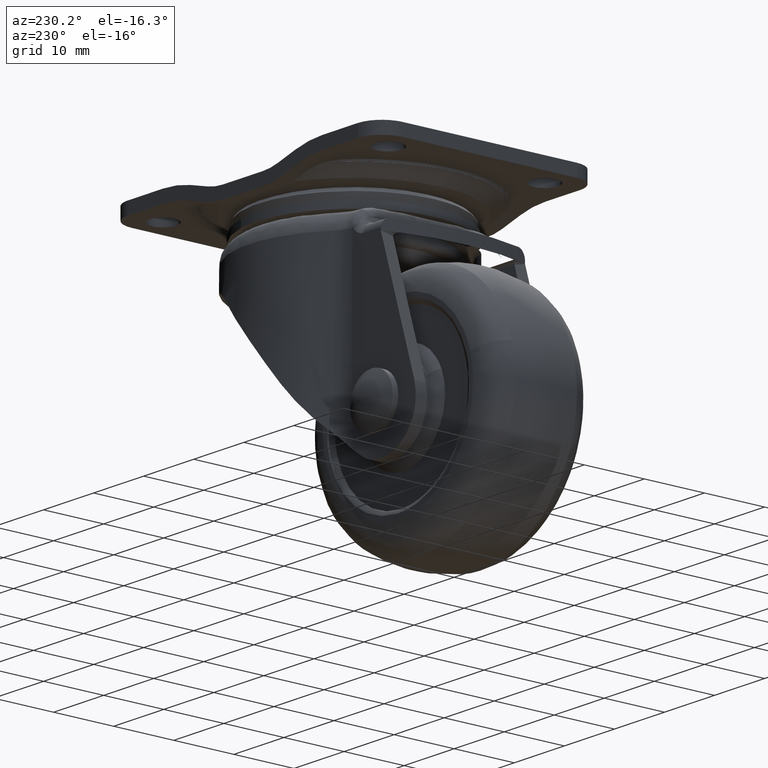
[diagram: clean part render]
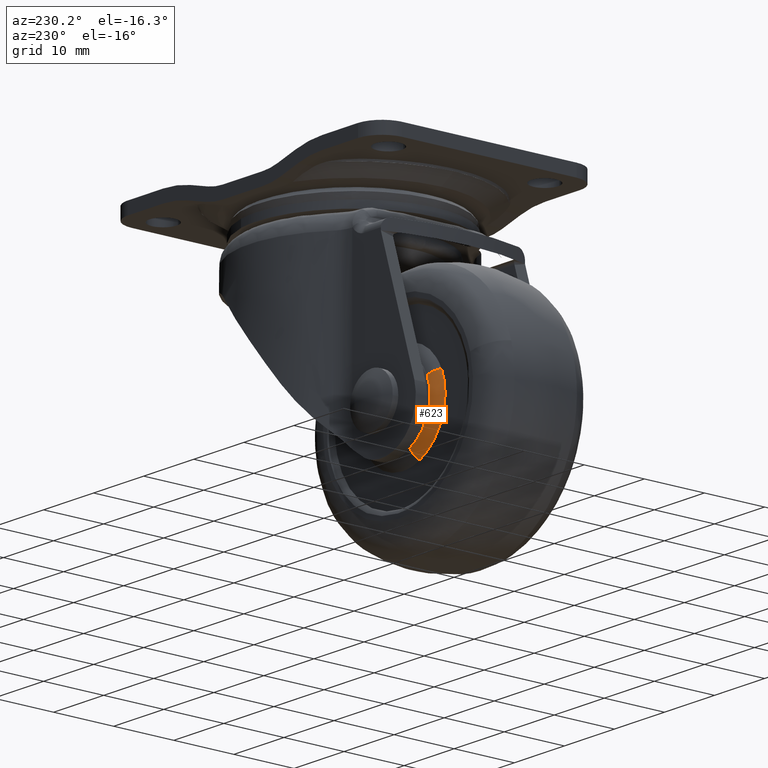
[diagram: same view with one face highlighted and labeled with its STEP entity id]
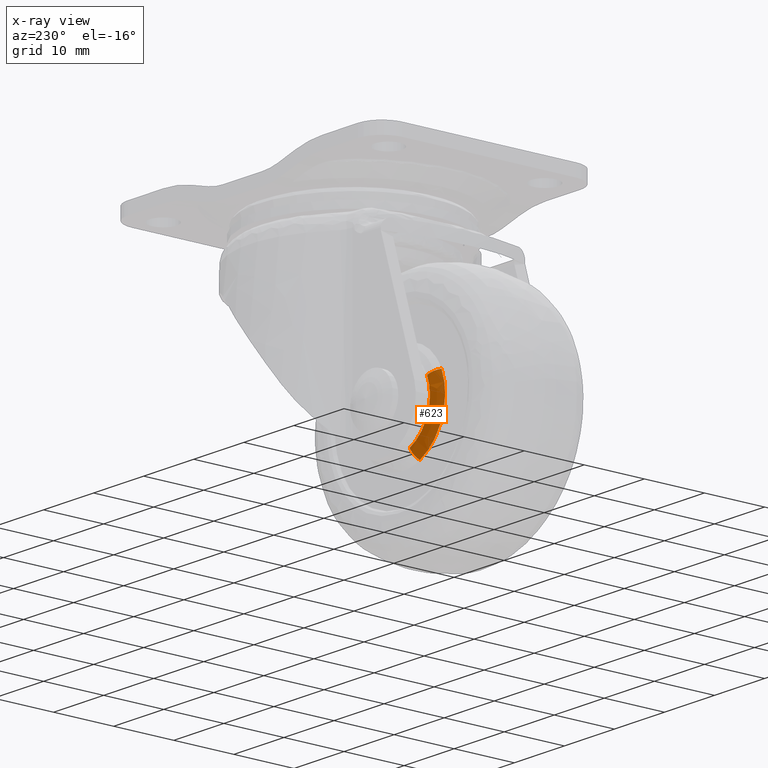
[diagram: x-ray of the same camera — body ghosted, the highlighted face saturated]
A machine part, auxiliary view. The second image highlights one B-rep face of the part: STEP entity #623.
The next image is the same camera in x-ray: the body ghosted, the highlighted face saturated — about 0% of this face is hidden behind the body in this view.
In plain terms, the highlighted face is a freeform B-spline surface patch.
Its self-contained STEP definition (entity closure, byte-faithful):
#410=CARTESIAN_POINT('',(-21.744345537140489,8.864834960376431,-41.234232919773874));
#411=VERTEX_POINT('',#410);
#425=CARTESIAN_POINT('',(-25.234047919773769,8.864834960376431,-32.255839462859612));
#426=VERTEX_POINT('',#425);
#427=CARTESIAN_POINT('',(-25.234047919773772,8.864834960376431,-32.255839462859612));
#428=CARTESIAN_POINT('',(-25.811371800489386,8.864834923923942,-33.567286849199249));
#429=CARTESIAN_POINT('',(-25.811371800489390,8.864834923923940,-35.000185000000101));
#430=CARTESIAN_POINT('',(-25.811371800489393,8.864834923923942,-39.443851202539982));
#431=CARTESIAN_POINT('',(-21.744345537140482,8.864834960376431,-41.234232919773881));
#439=(BOUNDED_CURVE()B_SPLINE_CURVE(2,(#427,#428,#429,#430,#431),.UNSPECIFIED.,.F.,.U.)B_SPLINE_CURVE_WITH_KNOTS((3,2,3),(0.681585009858461,0.750000000000000,0.931585009858460),.UNSPECIFIED.)CURVE()GEOMETRIC_REPRESENTATION_ITEM()RATIONAL_B_SPLINE_CURVE((0.883563120514976,0.919846853289416,1.0,0.787259927897132,0.883563120514975))REPRESENTATION_ITEM(''));
#440=EDGE_CURVE('',#426,#411,#439,.T.);
#508=CARTESIAN_POINT('',(-26.779562780533940,7.746381079059757,-31.575474655736350));
#509=VERTEX_POINT('',#508);
#510=CARTESIAN_POINT('',(-25.234047919773765,8.864834960376431,-32.255839462859612));
#511=CARTESIAN_POINT('',(-26.233581677183054,8.679702864499747,-31.815825840707099));
#512=CARTESIAN_POINT('',(-26.779562780533940,7.746381079059757,-31.575474655736354));
#520=(BOUNDED_CURVE()B_SPLINE_CURVE(2,(#510,#511,#512),.UNSPECIFIED.,.F.,.U.)B_SPLINE_CURVE_WITH_KNOTS((3,3),(-1.579950642084036,-0.418143713457754),.UNSPECIFIED.)CURVE()GEOMETRIC_REPRESENTATION_ITEM()RATIONAL_B_SPLINE_CURVE((0.922247682703659,0.843308160717569,0.922507067988700))REPRESENTATION_ITEM(''));
#521=EDGE_CURVE('',#426,#509,#520,.T.);
#555=CARTESIAN_POINT('',(-22.424710344263762,7.746381079059758,-42.779747780534038));
#556=VERTEX_POINT('',#555);
#570=CARTESIAN_POINT('',(-21.744345537140482,8.864834960376431,-41.234232919773874));
#571=CARTESIAN_POINT('',(-22.184359159292995,8.679702864499745,-42.233766677183155));
#572=CARTESIAN_POINT('',(-22.424710344263758,7.746381079059758,-42.779747780534038));
#580=(BOUNDED_CURVE()B_SPLINE_CURVE(2,(#570,#571,#572),.UNSPECIFIED.,.F.,.U.)B_SPLINE_CURVE_WITH_KNOTS((3,3),(-1.579950642084034,-0.418143713457753),.UNSPECIFIED.)CURVE()GEOMETRIC_REPRESENTATION_ITEM()RATIONAL_B_SPLINE_CURVE((0.922247682703659,0.843308160717569,0.922507067988700))REPRESENTATION_ITEM(''));
#581=EDGE_CURVE('',#411,#556,#580,.T.);
#586=CARTESIAN_POINT('',(-25.142856340495033,8.879666919982856,-32.295983717006635));
#587=CARTESIAN_POINT('',(-27.847057623488507,8.879666919982855,-38.438840057501665));
#588=CARTESIAN_POINT('',(-21.704201282993470,8.879666919982856,-41.143041340495145));
#589=CARTESIAN_POINT('',(-26.259844016963555,8.723056297191295,-31.804264663138831));
#590=CARTESIAN_POINT('',(-29.455764353824840,8.723056297191297,-39.064108680102393));
#591=CARTESIAN_POINT('',(-22.195920336861274,8.723056297191295,-42.260029016963657));
#592=CARTESIAN_POINT('',(-26.827626251257719,7.660453319041468,-31.554316208977937));
#593=CARTESIAN_POINT('',(-30.273495042279873,7.660453319041468,-39.381942460235656));
#594=CARTESIAN_POINT('',(-22.445868791022164,7.660453319041468,-42.827811251257820));
#602=(BOUNDED_SURFACE()B_SPLINE_SURFACE(2,2,((#586,#589,#592),(#587,#590,#593),(#588,#591,#594)),.UNSPECIFIED.,.F.,.F.,.U.)B_SPLINE_SURFACE_WITH_KNOTS((3,3),(3,3),(0.0,14.170293258000280),(0.0,2.327556280730058),.UNSPECIFIED.)GEOMETRIC_REPRESENTATION_ITEM()RATIONAL_B_SPLINE_SURFACE(((0.930528321397615,0.835014594243240,0.930813562072855),(0.657982886146389,0.590444481979128,0.658184581762121),(0.930528321397615,0.835014594243240,0.930813562072855)))REPRESENTATION_ITEM('')SURFACE());
#603=ORIENTED_EDGE('',*,*,#440,.T.);
#604=ORIENTED_EDGE('',*,*,#581,.T.);
#605=CARTESIAN_POINT('',(-26.779562780533933,7.746381079059757,-31.575474655736350));
#606=CARTESIAN_POINT('',(-27.500013999999780,7.746381078892600,-33.212049702302700));
#607=CARTESIAN_POINT('',(-27.500013999999791,7.746381078892600,-35.000185000000101));
#608=CARTESIAN_POINT('',(-27.500013999999791,7.746381078892600,-40.545503335207400));
#609=CARTESIAN_POINT('',(-22.424710344263755,7.746381079059758,-42.779747780534038));
#617=(BOUNDED_CURVE()B_SPLINE_CURVE(2,(#605,#606,#607,#608,#609),.UNSPECIFIED.,.F.,.U.)B_SPLINE_CURVE_WITH_KNOTS((3,2,3),(0.681585009859418,0.750000000000000,0.931585009859418),.UNSPECIFIED.)CURVE()GEOMETRIC_REPRESENTATION_ITEM()RATIONAL_B_SPLINE_CURVE((0.883563120515991,0.919846853290538,1.0,0.787259927896011,0.883563120515990))REPRESENTATION_ITEM(''));
#618=EDGE_CURVE('',#509,#556,#617,.T.);
#619=ORIENTED_EDGE('',*,*,#618,.F.);
#620=ORIENTED_EDGE('',*,*,#521,.F.);
#621=EDGE_LOOP('',(#603,#604,#619,#620));
#622=FACE_OUTER_BOUND('',#621,.T.);
#623=ADVANCED_FACE('',(#622),#602,.T.);